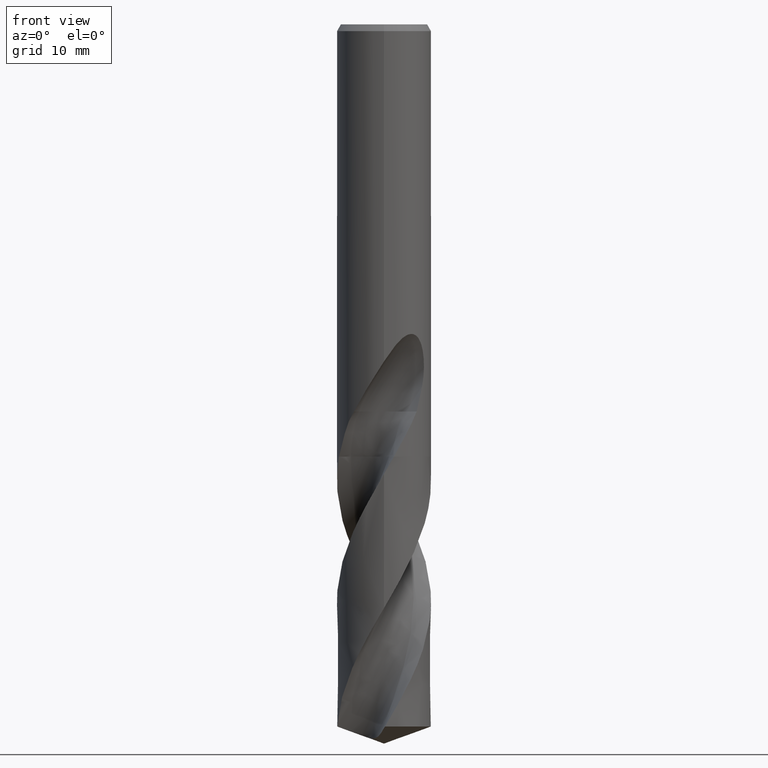
[diagram: clean part render]
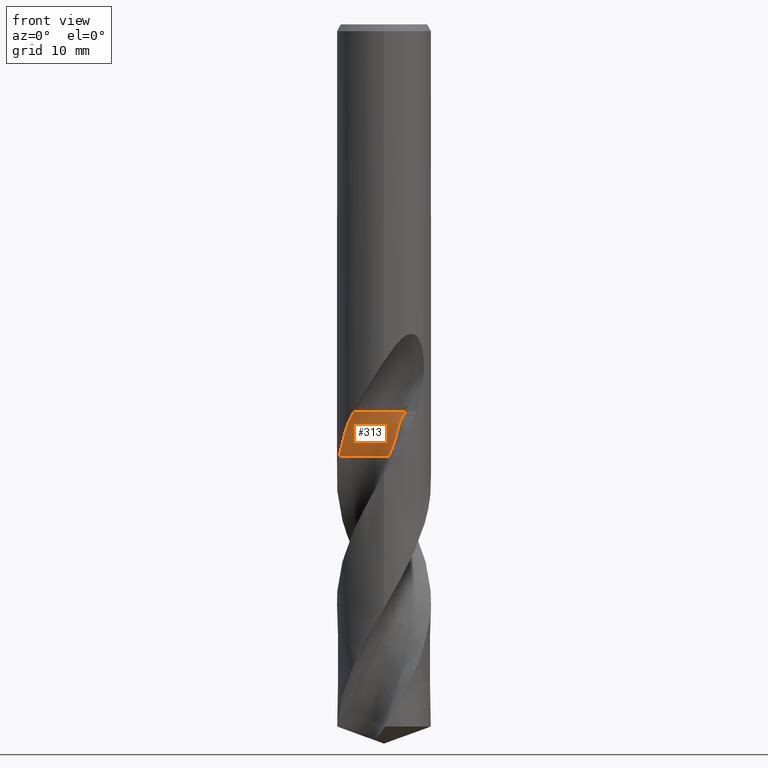
[diagram: same view with one face highlighted and labeled with its STEP entity id]
A machine part, front view. The second image highlights one B-rep face of the part: STEP entity #313.
In plain terms, the highlighted face is a freeform B-spline surface patch.
Its self-contained STEP definition (entity closure, byte-faithful):
#297=EDGE_CURVE('',#369,#449,#815,.T.);
#313=ADVANCED_FACE('',(#831),#832,.F.);
#369=VERTEX_POINT('',#891);
#419=EDGE_CURVE('',#467,#759,#944,.T.);
#425=VERTEX_POINT('',#950);
#435=EDGE_CURVE('',#759,#369,#960,.T.);
#449=VERTEX_POINT('',#975);
#467=VERTEX_POINT('',#996);
#579=EDGE_CURVE('',#449,#425,#1116,.T.);
#679=EDGE_CURVE('',#425,#467,#1232,.T.);
#759=VERTEX_POINT('',#1318);
#815=B_SPLINE_CURVE_WITH_KNOTS('',3,(#1847,#1848,#1849,#1850,#1851,#1852,#1853,#1854,#1855,#1856,#1857,#1858,#1859,#1860),.UNSPECIFIED.,.F.,.F.,(4,2,2,2,2,2,4),(0.0,1.9451827829186,3.38152269793438,4.41054124769396,5.38404337641816,7.0850770684755,8.90217717390362),.UNSPECIFIED.);
#831=FACE_OUTER_BOUND('',#1974,.T.);
#832=B_SPLINE_SURFACE_WITH_KNOTS('',3,3,((#1975,#1976,#1977,#1978,#1979,#1980,#1981,#1982,#1983,#1984,#1985,#1986,#1987,#1988,#1989,#1990,#1991,#1992,#1993,#1994,#1995,#1996,#1997,#1998,#1999,#2000,#2001,#2002,#2003,#2004,#2005,#2006,#2007,#2008,#2009,#2010,#2011,#2012,#2013,#2014,#2015,#2016,#2017),(#2018,#2019,#2020,#2021,#2022,#2023,#2024,#2025,#2026,#2027,#2028,#2029,#2030,#2031,#2032,#2033,#2034,#2035,#2036,#2037,#2038,#2039,#2040,#2041,#2042,#2043,#2044,#2045,#2046,#2047,#2048,#2049,#2050,#2051,#2052,#2053,#2054,#2055,#2056,#2057,#2058,#2059,#2060),(#2061,#2062,#2063,#2064,#2065,#2066,#2067,#2068,#2069,#2070,#2071,#2072,#2073,#2074,#2075,#2076,#2077,#2078,#2079,#2080,#2081,#2082,#2083,#2084,#2085,#2086,#2087,#2088,#2089,#2090,#2091,#2092,#2093,#2094,#2095,#2096,#2097,#2098,#2099,#2100,#2101,#2102,#2103),(#2104,#2105,#2106,#2107,#2108,#2109,#2110,#2111,#2112,#2113,#2114,#2115,#2116,#2117,#2118,#2119,#2120,#2121,#2122,#2123,#2124,#2125,#2126,#2127,#2128,#2129,#2130,#2131,#2132,#2133,#2134,#2135,#2136,#2137,#2138,#2139,#2140,#2141,#2142,#2143,#2144,#2145,#2146),(#2147,#2148,#2149,#2150,#2151,#2152,#2153,#2154,#2155,#2156,#2157,#2158,#2159,#2160,#2161,#2162,#2163,#2164,#2165,#2166,#2167,#2168,#2169,#2170,#2171,#2172,#2173,#2174,#2175,#2176,#2177,#2178,#2179,#2180,#2181,#2182,#2183,#2184,#2185,#2186,#2187,#2188,#2189),(#2190,#2191,#2192,#2193,#2194,#2195,#2196,#2197,#2198,#2199,#2200,#2201,#2202,#2203,#2204,#2205,#2206,#2207,#2208,#2209,#2210,#2211,#2212,#2213,#2214,#2215,#2216,#2217,#2218,#2219,#2220,#2221,#2222,#2223,#2224,#2225,#2226,#2227,#2228,#2229,#2230,#2231,#2232),(#2233,#2234,#2235,#2236,#2237,#2238,#2239,#2240,#2241,#2242,#2243,#2244,#2245,#2246,#2247,#2248,#2249,#2250,#2251,#2252,#2253,#2254,#2255,#2256,#2257,#2258,#2259,#2260,#2261,#2262,#2263,#2264,#2265,#2266,#2267,#2268,#2269,#2270,#2271,#2272,#2273,#2274,#2275),(#2276,#2277,#2278,#2279,#2280,#2281,#2282,#2283,#2284,#2285,#2286,#2287,#2288,#2289,#2290,#2291,#2292,#2293,#2294,#2295,#2296,#2297,#2298,#2299,#2300,#2301,#2302,#2303,#2304,#2305,#2306,#2307,#2308,#2309,#2310,#2311,#2312,#2313,#2314,#2315,#2316,#2317,#2318),(#2319,#2320,#2321,#2322,#2323,#2324,#2325,#2326,#2327,#2328,#2329,#2330,#2331,#2332,#2333,#2334,#2335,#2336,#2337,#2338,#2339,#2340,#2341,#2342,#2343,#2344,#2345,#2346,#2347,#2348,#2349,#2350,#2351,#2352,#2353,#2354,#2355,#2356,#2357,#2358,#2359,#2360,#2361),(#2362,#2363,#2364,#2365,#2366,#2367,#2368,#2369,#2370,#2371,#2372,#2373,#2374,#2375,#2376,#2377,#2378,#2379,#2380,#2381,#2382,#2383,#2384,#2385,#2386,#2387,#2388,#2389,#2390,#2391,#2392,#2393,#2394,#2395,#2396,#2397,#2398,#2399,#2400,#2401,#2402,#2403,#2404),(#2405,#2406,#2407,#2408,#2409,#2410,#2411,#2412,#2413,#2414,#2415,#2416,#2417,#2418,#2419,#2420,#2421,#2422,#2423,#2424,#2425,#2426,#2427,#2428,#2429,#2430,#2431,#2432,#2433,#2434,#2435,#2436,#2437,#2438,#2439,#2440,#2441,#2442,#2443,#2444,#2445,#2446,#2447)),.UNSPECIFIED.,.F.,.F.,.F.,(4,1,1,1,1,1,1,1,4),(4,1,1,2,2,2,2,2,2,2,2,2,2,2,2,2,2,2,2,2,1,2,4),(-4.97486995880838E-017,0.392700718332967,0.785401436665935,1.1781021549989,1.57080287333187,1.96350359166484,2.35620430999781,2.74890502833077,3.14160574666374),(0.0,0.994493988242577,1.98898797648515,2.98348196472773,3.97797595297031,5.96696392945546,7.95595190594061,9.94493988242576,11.9339278589109,15.9119038118812,19.8898797648515,23.8678557178218,27.8458316707921,31.8238076237624,35.8017835767328,39.7797595297031,43.7577354826734,47.7357114356437,51.713687388614,55.6916633415843,59.6696392945546,61.6586272710397,63.6476152475249),.UNSPECIFIED.);
#891=CARTESIAN_POINT('',(-6.69144860367263,-2.05536264060814,-64.3));
#944=B_SPLINE_CURVE_WITH_KNOTS('',3,(#2930,#2931,#2932,#2933,#2934,#2935,#2936,#2937,#2938,#2939,#2940,#2941,#2942,#2943,#2944,#2945,#2946,#2947,#2948,#2949,#2950,#2951,#2952,#2953,#2954,#2955,#2956,#2957,#2958,#2959,#2960,#2961,#2962,#2963,#2964,#2965,#2966,#2967,#2968,#2969,#2970,#2971,#2972),.UNSPECIFIED.,.F.,.F.,(4,1,1,2,2,2,2,2,2,2,2,2,2,2,2,2,2,2,2,2,1,2,4),(0.0,0.994493988242577,1.98898797648515,2.98348196472773,3.97797595297031,5.96696392945546,7.95595190594061,9.94493988242576,11.9339278589109,15.9119038118812,19.8898797648515,23.8678557178218,27.8458316707921,31.8238076237624,35.8017835767328,39.7797595297031,43.7577354826734,47.7357114356437,51.713687388614,55.6916633415843,59.6696392945546,61.6586272710397,63.6476152475249),.UNSPECIFIED.);
#950=CARTESIAN_POINT('',(0.764379768862566,-2.16300864048747,-57.589));
#960=B_SPLINE_CURVE_WITH_KNOTS('',3,(#3048,#3049,#3050,#3051,#3052,#3053,#3054,#3055,#3056,#3057,#3058,#3059,#3060,#3061),.UNSPECIFIED.,.F.,.F.,(4,2,2,2,2,2,4),(0.0,1.82210102478741,3.64315387964052,5.46396887706395,7.28546499508547,8.50182158830522,9.71820884780963),.UNSPECIFIED.);
#975=CARTESIAN_POINT('',(-4.46049730765723,-5.39480896495721,-57.589));
#996=CARTESIAN_POINT('',(3.29983164782354,-3.46683502217647,-57.589));
#1116=CIRCLE('',#5026,4.66666667);
#1232=CIRCLE('',#6349,4.66666667);
#1318=CARTESIAN_POINT('',(0.748145762479187,-4.33704254171391,-64.2999999999999));
#1847=CARTESIAN_POINT('',(-6.69144860367262,-2.05536264060813,-64.3));
#1848=CARTESIAN_POINT('',(-6.59591139504917,-2.36639404139927,-63.7391548991452));
#1849=CARTESIAN_POINT('',(-6.47787799210923,-2.67341129224145,-63.1763521722709));
#1850=CARTESIAN_POINT('',(-6.23291009488896,-3.19543830915819,-62.2031630259271));
#1851=CARTESIAN_POINT('',(-6.11738702830057,-3.41168238523792,-61.7957902130703));
#1852=CARTESIAN_POINT('',(-5.8960799425789,-3.77730901776456,-61.0461534134703));
#1853=CARTESIAN_POINT('',(-5.80238719513786,-3.91923206640351,-60.7376275881678));
#1854=CARTESIAN_POINT('',(-5.61345363457113,-4.1850050892297,-60.1244403960143));
#1855=CARTESIAN_POINT('',(-5.55606207892118,-4.25950079524586,-59.9336442417219));
#1856=CARTESIAN_POINT('',(-5.36013898140775,-4.50656511599813,-59.3449405568858));
#1857=CARTESIAN_POINT('',(-5.21986348424436,-4.67000849152014,-58.9926413427591));
#1858=CARTESIAN_POINT('',(-4.88153314513781,-5.02339373161047,-58.278931966661));
#1859=CARTESIAN_POINT('',(-4.68422765363351,-5.20982584278351,-57.9284153820524));
#1860=CARTESIAN_POINT('',(-4.46049730765723,-5.39480896495721,-57.589));
#1974=EDGE_LOOP('',(#7559,#7560,#7561,#7562,#7563));
#1975=CARTESIAN_POINT('',(-3.29983164782353,-10.0664983178235,-57.589));
#1976=CARTESIAN_POINT('',(-3.50881254603856,-10.0545086616715,-57.8460583386257));
#1977=CARTESIAN_POINT('',(-3.92977032875239,-10.0017339363966,-58.3622545763585));
#1978=CARTESIAN_POINT('',(-4.56326547366707,-9.81944057087525,-59.1399459981914));
#1979=CARTESIAN_POINT('',(-4.97774642156578,-9.61541989535124,-59.6564441800539));
#1980=CARTESIAN_POINT('',(-5.38156272028351,-9.36439585003654,-60.1691905475161));
#1981=CARTESIAN_POINT('',(-5.57876784448333,-9.23409513295122,-60.4252080562311));
#1982=CARTESIAN_POINT('',(-6.15723615038502,-8.830839009457,-61.1931720667427));
#1983=CARTESIAN_POINT('',(-6.52618836616893,-8.55065171422104,-61.7057245244399));
#1984=CARTESIAN_POINT('',(-7.2362501683759,-7.97635871886207,-62.7382587712829));
#1985=CARTESIAN_POINT('',(-7.57269513881336,-7.66489311404026,-63.2543647951044));
#1986=CARTESIAN_POINT('',(-8.19988108467798,-6.99493648458523,-64.2849822665184));
#1987=CARTESIAN_POINT('',(-8.4914752786019,-6.63863491734581,-64.7998037640289));
#1988=CARTESIAN_POINT('',(-9.02400731562542,-5.88690441270039,-65.8277369762846));
#1989=CARTESIAN_POINT('',(-9.26706787332613,-5.49524691568576,-66.3421265537199));
#1990=CARTESIAN_POINT('',(-9.91901959807469,-4.27960512167858,-67.8872163453967));
#1991=CARTESIAN_POINT('',(-10.2519857468365,-3.41617499501985,-68.9170991677876));
#1992=CARTESIAN_POINT('',(-10.6796761487768,-1.62633860006734,-70.9758516861561));
#1993=CARTESIAN_POINT('',(-10.7824361029543,-0.706382727473785,-72.0053162300034));
#1994=CARTESIAN_POINT('',(-10.7433200409735,1.13324726122313,-74.0645744854547));
#1995=CARTESIAN_POINT('',(-10.6096864227348,2.04915243873665,-75.0941672343814));
#1996=CARTESIAN_POINT('',(-10.1054297114813,3.81879192086436,-77.1532358862243));
#1997=CARTESIAN_POINT('',(-9.74401141812056,4.67095408556283,-78.1827868065449));
#1998=CARTESIAN_POINT('',(-8.80771467266974,6.25504442832634,-80.2419197191751));
#1999=CARTESIAN_POINT('',(-8.24214050217149,6.98777328372831,-81.271476342567));
#2000=CARTESIAN_POINT('',(-6.93509058503573,8.28291775174636,-83.330593199328));
#2001=CARTESIAN_POINT('',(-6.20232147883095,8.8484367270787,-84.3601537105726));
#2002=CARTESIAN_POINT('',(-4.60968879041636,9.77006548460051,-86.4192680232754));
#2003=CARTESIAN_POINT('',(-3.75749869244718,10.1314093158815,-87.4488309978122));
#2004=CARTESIAN_POINT('',(-1.98323239051513,10.6192505141428,-89.5079497015168));
#2005=CARTESIAN_POINT('',(-1.06729515296425,10.7528026914806,-90.5375020018725));
#2006=CARTESIAN_POINT('',(0.772635298698635,10.7751840080433,-92.5966246789132));
#2007=CARTESIAN_POINT('',(1.69251400366652,10.6723276029332,-93.6261918776934));
#2008=CARTESIAN_POINT('',(3.4780271543937,10.2277648228481,-95.6852928300867));
#2009=CARTESIAN_POINT('',(4.34178575698249,9.89508223823008,-96.7148110660356));
#2010=CARTESIAN_POINT('',(5.9564814464106,9.01239888982671,-98.7739869054311));
#2011=CARTESIAN_POINT('',(6.70794899003705,8.47166995433783,-99.8037510739771));
#2012=CARTESIAN_POINT('',(8.04561415509657,7.20802352223647,-101.862869114957));
#2013=CARTESIAN_POINT('',(8.9298719244274,6.13892736565896,-103.406162240559));
#2014=CARTESIAN_POINT('',(9.58594201694645,4.92165016213681,-104.949807598427));
#2015=CARTESIAN_POINT('',(9.96519930062713,4.0816668858364,-105.978998266864));
#2016=CARTESIAN_POINT('',(10.1327521242864,3.65577134891559,-106.492924436925));
#2017=CARTESIAN_POINT('',(10.2806169825766,3.22633791090588,-107.007569177992));
#2018=CARTESIAN_POINT('',(-3.73176163040232,-9.63453079590838,-57.5889999999997));
#2019=CARTESIAN_POINT('',(-3.94072856525849,-9.62252718025161,-57.8460579773047));
#2020=CARTESIAN_POINT('',(-4.3579178149229,-9.56593515774658,-58.3624595022561));
#2021=CARTESIAN_POINT('',(-4.97406917282312,-9.36696676986825,-59.1408498304168));
#2022=CARTESIAN_POINT('',(-5.36796910923515,-9.14514976528623,-59.6575990486233));
#2023=CARTESIAN_POINT('',(-5.74596343824771,-8.87384487971447,-60.1700674477359));
#2024=CARTESIAN_POINT('',(-5.93034187723457,-8.73430907120156,-60.4258927569387));
#2025=CARTESIAN_POINT('',(-6.47084927552336,-8.30573753613271,-61.1932699421673));
#2026=CARTESIAN_POINT('',(-6.81600400679812,-8.01235340496926,-61.7055140747684));
#2027=CARTESIAN_POINT('',(-7.48208598457642,-7.41660633888296,-62.7384626668455));
#2028=CARTESIAN_POINT('',(-7.79534935795366,-7.09546313670838,-63.2547527392592));
#2029=CARTESIAN_POINT('',(-8.37371502304079,-6.4087566277588,-64.2855170976543));
#2030=CARTESIAN_POINT('',(-8.64007881771161,-6.04552428212349,-64.8003445038651));
#2031=CARTESIAN_POINT('',(-9.12062630649191,-5.28314288346617,-65.8280518665959));
#2032=CARTESIAN_POINT('',(-9.33771490145596,-4.8879174882778,-66.3423872273284));
#2033=CARTESIAN_POINT('',(-9.91161367790428,-3.66655824802964,-67.8875814031097));
#2034=CARTESIAN_POINT('',(-10.1926852358708,-2.80592801597651,-68.9175092516615));
#2035=CARTESIAN_POINT('',(-10.5170812841235,-1.0351698934971,-70.9762110194065));
#2036=CARTESIAN_POINT('',(-10.5703058773423,-0.131134855252556,-72.0056624120337));
#2037=CARTESIAN_POINT('',(-10.4362540215495,1.66392549488797,-74.0649402154165));
#2038=CARTESIAN_POINT('',(-10.2587325552697,2.55188823726081,-75.0945376761905));
#2039=CARTESIAN_POINT('',(-9.67389507683619,4.25432527599765,-77.1535994215087));
#2040=CARTESIAN_POINT('',(-9.27710306471494,5.06833111690571,-78.1831492562972));
#2041=CARTESIAN_POINT('',(-8.27988781130467,6.56699040050917,-80.2422842655511));
#2042=CARTESIAN_POINT('',(-7.68976717677777,7.25384546567816,-81.2718405532145));
#2043=CARTESIAN_POINT('',(-6.34544511985223,8.45093121906872,-83.3309572866447));
#2044=CARTESIAN_POINT('',(-5.60055432980223,8.96585716033178,-84.360518009602));
#2045=CARTESIAN_POINT('',(-3.99671315341913,9.78317180345821,-86.4196318289816));
#2046=CARTESIAN_POINT('',(-3.14561806104685,10.0924958677325,-87.4491953596021));
#2047=CARTESIAN_POINT('',(-1.38694854189194,10.4765714036595,-89.5083141866375));
#2048=CARTESIAN_POINT('',(-0.485256203615289,10.5600811021299,-90.5378657667178));
#2049=CARTESIAN_POINT('',(1.31329859967938,10.4860581867278,-92.5969884437585));
#2050=CARTESIAN_POINT('',(2.20672182345721,10.3384098009037,-93.6265558485988));
#2051=CARTESIAN_POINT('',(3.92778325467535,9.81107565199473,-95.6856585276232));
#2052=CARTESIAN_POINT('',(4.75458759342346,9.44175409449398,-96.7151761608552));
#2053=CARTESIAN_POINT('',(6.28594434569274,8.49532487957437,-98.7743436137564));
#2054=CARTESIAN_POINT('',(6.99239122189856,7.92852131910726,-99.8041151489435));
#2055=CARTESIAN_POINT('',(8.23317298400808,6.62429495353359,-101.863256869436));
#2056=CARTESIAN_POINT('',(9.04237432652422,5.53456887944045,-103.406472596016));
#2057=CARTESIAN_POINT('',(9.61975099493048,4.31113497689707,-104.950169885672));
#2058=CARTESIAN_POINT('',(9.94562984568271,3.47052972796322,-105.979402733242));
#2059=CARTESIAN_POINT('',(10.0880404866487,3.04607829889202,-106.493254359842));
#2060=CARTESIAN_POINT('',(10.2122746860297,2.61930524880828,-107.007926233685));
#2061=CARTESIAN_POINT('',(-4.42366208765801,-8.59901504931681,-57.5889999999999));
#2062=CARTESIAN_POINT('',(-4.6325955587033,-8.58698906973285,-57.8460573850225));
#2063=CARTESIAN_POINT('',(-5.04073130130756,-8.52426270110077,-58.3627965363668));
#2064=CARTESIAN_POINT('',(-5.61557163235095,-8.29884790357273,-59.1423363446427));
#2065=CARTESIAN_POINT('',(-5.96124140866461,-8.04962974681607,-59.6594984252455));
#2066=CARTESIAN_POINT('',(-6.27953756124377,-7.74804043050628,-60.1715096739226));
#2067=CARTESIAN_POINT('',(-6.43459545681063,-7.59513917884701,-60.4270188688274));
#2068=CARTESIAN_POINT('',(-6.88912987868514,-7.13104346703358,-61.1934309144351));
#2069=CARTESIAN_POINT('',(-7.18145179013713,-6.82073454454745,-61.7051679294575));
#2070=CARTESIAN_POINT('',(-7.75106117045246,-6.19957746400756,-62.7387980327654));
#2071=CARTESIAN_POINT('',(-8.01412272663561,-5.86830156591244,-63.2553907894031));
#2072=CARTESIAN_POINT('',(-8.48820754221347,-5.16751629419489,-64.2863967145464));
#2073=CARTESIAN_POINT('',(-8.70136509231956,-4.80045852725841,-64.8012338822963));
#2074=CARTESIAN_POINT('',(-9.07372983434759,-4.03745225320995,-65.8285697231505));
#2075=CARTESIAN_POINT('',(-9.2374667106876,-3.6454206791817,-66.3428159403744));
#2076=CARTESIAN_POINT('',(-9.65301866413332,-2.44366771173087,-67.8881818265531));
#2077=CARTESIAN_POINT('',(-9.83143639697225,-1.60927267381922,-68.9181837201284));
#2078=CARTESIAN_POINT('',(-9.95687400574221,0.0822606398776643,-70.9768019933762));
#2079=CARTESIAN_POINT('',(-9.91737984534849,0.934762302885794,-72.0062318521999));
#2080=CARTESIAN_POINT('',(-9.61122008417652,2.60294962567693,-74.0655416403347));
#2081=CARTESIAN_POINT('',(-9.35705321553422,3.41758673459161,-75.0951468213974));
#2082=CARTESIAN_POINT('',(-8.63781179298103,4.95360312805145,-77.1541974313213));
#2083=CARTESIAN_POINT('',(-8.18546073662565,5.67724552123525,-78.1837453946385));
#2084=CARTESIAN_POINT('',(-7.10040692189147,6.98085374234333,-80.2428838008008));
#2085=CARTESIAN_POINT('',(-6.47944597884771,7.56621926839333,-81.2724395724957));
#2086=CARTESIAN_POINT('',(-5.09958973079383,8.5524070938313,-83.3315560820657));
#2087=CARTESIAN_POINT('',(-4.35057954898381,8.96134793176416,-84.3611172392383));
#2088=CARTESIAN_POINT('',(-2.76580817880315,9.56562108097839,-86.4202300962356));
#2089=CARTESIAN_POINT('',(-1.93758889211631,9.77136294864735,-87.4497944636949));
#2090=CARTESIAN_POINT('',(-0.251370158395844,9.95415312687895,-89.5089138000691));
#2091=CARTESIAN_POINT('',(0.601938338745788,9.9432636007653,-90.5384641468212));
#2092=CARTESIAN_POINT('',(2.27942283333668,9.69292640210051,-92.5975866147934));
#2093=CARTESIAN_POINT('',(3.10213412029302,9.46623318965089,-93.6271544888506));
#2094=CARTESIAN_POINT('',(4.66140412995311,8.79902141201086,-95.6862599560456));
#2095=CARTESIAN_POINT('',(5.39974557434216,8.37113266624042,-96.7157764071704));
#2096=CARTESIAN_POINT('',(6.73911006576655,7.33037925329702,-98.7749305002556));
#2097=CARTESIAN_POINT('',(7.34516573042872,6.72934061261509,-99.8047136269693));
#2098=CARTESIAN_POINT('',(8.37608426513044,5.38249829722481,-101.863894907776));
#2099=CARTESIAN_POINT('',(9.02700059886034,4.28136836410778,-103.406983059183));
#2100=CARTESIAN_POINT('',(9.44457534059838,3.07691709386545,-104.950765625445));
#2101=CARTESIAN_POINT('',(9.66347237859548,2.25629478471166,-105.980068055276));
#2102=CARTESIAN_POINT('',(9.75618359423897,1.844729111991,-106.493797006551));
#2103=CARTESIAN_POINT('',(9.83422432518714,1.43267275135709,-107.008513474876));
#2104=CARTESIAN_POINT('',(-4.78815013996792,-6.76667242885585,-57.5890000000006));
#2105=CARTESIAN_POINT('',(-4.99702438896652,-6.75463467062173,-57.8460570130688));
#2106=CARTESIAN_POINT('',(-5.3890910636519,-6.68860375807203,-58.3630069344086));
#2107=CARTESIAN_POINT('',(-5.89149644470023,-6.45024982084936,-59.143264311467));
#2108=CARTESIAN_POINT('',(-6.15459342528215,-6.19074126242421,-59.6606841306378));
#2109=CARTESIAN_POINT('',(-6.37276629066178,-5.88145026099746,-60.1724099885699));
#2110=CARTESIAN_POINT('',(-6.47951505658498,-5.72685730974124,-60.4277218528075));
#2111=CARTESIAN_POINT('',(-6.79450327314536,-5.26288116531852,-61.1935314017895));
#2112=CARTESIAN_POINT('',(-7.00388690275235,-4.95944418279917,-61.7049518583315));
#2113=CARTESIAN_POINT('',(-7.42520501377317,-4.35845086807929,-62.7390073747786));
#2114=CARTESIAN_POINT('',(-7.61287359725732,-4.04194992933147,-63.2557890993745));
#2115=CARTESIAN_POINT('',(-7.93435028356544,-3.38151482426968,-64.2869458193425));
#2116=CARTESIAN_POINT('',(-8.07157144060875,-3.03969840744269,-64.8017890682727));
#2117=CARTESIAN_POINT('',(-8.29364334905912,-2.33792895923852,-65.8288930139229));
#2118=CARTESIAN_POINT('',(-8.38527162247996,-1.98095049832299,-66.3430835776314));
#2119=CARTESIAN_POINT('',(-8.59262061957592,-0.897269681474612,-67.8885566253019));
#2120=CARTESIAN_POINT('',(-8.64382720063193,-0.158163417991406,-68.9186047844446));
#2121=CARTESIAN_POINT('',(-8.53900083133701,1.30935695267795,-70.9771708907724));
#2122=CARTESIAN_POINT('',(-8.40058747458571,2.0372113869389,-72.0065872732054));
#2123=CARTESIAN_POINT('',(-7.92872928216756,3.43076236901789,-74.065917140432));
#2124=CARTESIAN_POINT('',(-7.61042956804136,4.09977650669047,-75.0955271066683));
#2125=CARTESIAN_POINT('',(-6.80044758646038,5.32799017311723,-77.1545707214222));
#2126=CARTESIAN_POINT('',(-6.32296857223982,5.89450110353119,-78.184117537307));
#2127=CARTESIAN_POINT('',(-5.22814576914339,6.87735746364036,-80.2432580661399));
#2128=CARTESIAN_POINT('',(-4.62270251241508,7.30436136771674,-81.2728135156968));
#2129=CARTESIAN_POINT('',(-3.31466454135437,7.9778602373278,-83.3319298834696));
#2130=CARTESIAN_POINT('',(-2.62078621813453,8.23754799378424,-84.3614912350259));
#2131=CARTESIAN_POINT('',(-1.18474105071755,8.55750689327334,-86.4206036466578));
#2132=CARTESIAN_POINT('',(-0.447687740518252,8.63282259877385,-87.4501684867153));
#2133=CARTESIAN_POINT('',(1.02257075806945,8.57823517744179,-89.5092880852494));
#2134=CARTESIAN_POINT('',(1.75463240731503,8.46428943291188,-90.5388375994318));
#2135=CARTESIAN_POINT('',(3.16310797336417,8.03909300532693,-92.597960117999));
#2136=CARTESIAN_POINT('',(3.84244140380669,7.74344130663392,-93.6275281330164));
#2137=CARTESIAN_POINT('',(5.09718217365306,6.97524497931631,-95.686635463549));
#2138=CARTESIAN_POINT('',(5.67929931959901,6.51696831553941,-96.7161512745028));
#2139=CARTESIAN_POINT('',(6.69842837424658,5.45570146884466,-98.7752967092924));
#2140=CARTESIAN_POINT('',(7.14569572618579,4.86484496732055,-99.805087271697));
#2141=CARTESIAN_POINT('',(7.86129408055663,3.57941219660213,-101.864293167457));
#2142=CARTESIAN_POINT('',(8.28629147503005,2.55334113442922,-103.40730167831));
#2143=CARTESIAN_POINT('',(8.49328834828579,1.46693309593337,-104.951137571696));
#2144=CARTESIAN_POINT('',(8.57538701884239,0.735418858272012,-105.980483336108));
#2145=CARTESIAN_POINT('',(8.6066151674876,0.370242154226122,-106.494135782925));
#2146=CARTESIAN_POINT('',(8.62908299142292,0.00509954822618292,-107.008880064482));
#2147=CARTESIAN_POINT('',(-4.42368302919141,-4.93432564284499,-57.5889999999997));
#2148=CARTESIAN_POINT('',(-4.6324980618295,-4.92229966863291,-57.8460572183982));
#2149=CARTESIAN_POINT('',(-5.00845415616093,-4.8593651754575,-58.362890096104));
#2150=CARTESIAN_POINT('',(-5.43898806050361,-4.63677638133093,-59.1427489854165));
#2151=CARTESIAN_POINT('',(-5.62186070905156,-4.39935960177217,-59.6600256761284));
#2152=CARTESIAN_POINT('',(-5.74458355097845,-4.12126916162013,-60.1719100178147));
#2153=CARTESIAN_POINT('',(-5.80605263611867,-3.98360069981228,-60.427331468878));
#2154=CARTESIAN_POINT('',(-5.99216193717878,-3.5731376901962,-61.1934755928848));
#2155=CARTESIAN_POINT('',(-6.12755064437716,-3.30778869109435,-61.7050718581898));
#2156=CARTESIAN_POINT('',(-6.41958196097073,-2.78217308488059,-62.7388911117857));
#2157=CARTESIAN_POINT('',(-6.54325090496235,-2.50817401971095,-63.2555679151746));
#2158=CARTESIAN_POINT('',(-6.7391777116804,-1.94341822472888,-64.286640877627));
#2159=CARTESIAN_POINT('',(-6.81590231287081,-1.65398146141315,-64.8014807625984));
#2160=CARTESIAN_POINT('',(-6.92255598701263,-1.06630246085856,-65.828713476891));
#2161=CARTESIAN_POINT('',(-6.96097896255789,-0.769303749496043,-66.3429349599084));
#2162=CARTESIAN_POINT('',(-7.02115805546506,0.12561667971264,-67.8883484716168));
#2163=CARTESIAN_POINT('',(-6.99130255903262,0.728005918135652,-68.9183709555119));
#2164=CARTESIAN_POINT('',(-6.75946646801981,1.90044685936529,-70.9769660318732));
#2165=CARTESIAN_POINT('',(-6.57736437780929,2.47528748192744,-72.0063898774554));
#2166=CARTESIAN_POINT('',(-6.05752001647718,3.55169739247732,-74.0657086352505));
#2167=CARTESIAN_POINT('',(-5.73569706178056,4.06163092280547,-75.0953159750353));
#2168=CARTESIAN_POINT('',(-4.95967317278114,4.970747050885,-77.1543633715807));
#2169=CARTESIAN_POINT('',(-4.51911079747335,5.38247143795377,-78.1839108485987));
#2170=CARTESIAN_POINT('',(-3.53800955323688,6.06525348887199,-80.2430502536066));
#2171=CARTESIAN_POINT('',(-3.00750531143267,6.35188880751094,-81.2726058853544));
#2172=CARTESIAN_POINT('',(-1.88548009074072,6.76398465765321,-83.3317222703217));
#2173=CARTESIAN_POINT('',(-1.29965375496171,6.90687882479332,-84.3612835104334));
#2174=CARTESIAN_POINT('',(-0.109816454487441,7.02108093445657,-86.420396237929));
#2175=CARTESIAN_POINT('',(0.49309847085435,7.01078652500466,-87.4499607196417));
#2176=CARTESIAN_POINT('',(1.67299503192368,6.8195356662845,-89.5090802958465));
#2177=CARTESIAN_POINT('',(2.25360123969187,6.65677775679425,-90.5386302998312));
#2178=CARTESIAN_POINT('',(3.34662910243399,6.17297822293768,-92.5977526121561));
#2179=CARTESIAN_POINT('',(3.86710940459124,5.86848572895271,-93.6273206379317));
#2180=CARTESIAN_POINT('',(4.80185675002777,5.12353066786588,-95.6864269337688));
#2181=CARTESIAN_POINT('',(5.22801257232492,4.69696387077909,-96.715943093168));
#2182=CARTESIAN_POINT('',(5.94343263318058,3.73929438988125,-98.7750933501922));
#2183=CARTESIAN_POINT('',(6.24789537840215,3.21861080539169,-99.8048797765485));
#2184=CARTESIAN_POINT('',(6.69567656220635,2.11058125453469,-101.864072002495));
#2185=CARTESIAN_POINT('',(6.94067601373363,1.24031132233056,-103.407124757239));
#2186=CARTESIAN_POINT('',(6.99829786470512,0.343545861444379,-104.950931002557));
#2187=CARTESIAN_POINT('',(6.98811168513648,-0.253292701476319,-105.980252736023));
#2188=CARTESIAN_POINT('',(6.98028925119593,-0.552082885936365,-106.493947651013));
#2189=CARTESIAN_POINT('',(6.96936764026017,-0.852615981953073,-107.008676487019));
#2190=CARTESIAN_POINT('',(-3.38574802558682,-3.38093517444262,-57.5889999999994));
#2191=CARTESIAN_POINT('',(-3.59451285397219,-3.36894273932881,-57.8460579705312));
#2192=CARTESIAN_POINT('',(-3.9567695835608,-3.31503424841942,-58.362463807161));
#2193=CARTESIAN_POINT('',(-4.3269373391836,-3.13451475299781,-59.1408688215108));
#2194=CARTESIAN_POINT('',(-4.44414766467083,-2.94820862626746,-59.6576233085946));
#2195=CARTESIAN_POINT('',(-4.49062524613384,-2.73547095497589,-60.1700858759795));
#2196=CARTESIAN_POINT('',(-4.51673758670741,-2.63076654789907,-60.4259071432813));
#2197=CARTESIAN_POINT('',(-4.60425607271243,-2.31906328684797,-61.1932719975124));
#2198=CARTESIAN_POINT('',(-4.6858583738981,-2.11721971905361,-61.7055096538508));
#2199=CARTESIAN_POINT('',(-4.88729025568413,-1.71072008801375,-62.7384669500609));
#2200=CARTESIAN_POINT('',(-4.96809636516981,-1.50047922836665,-63.2547608928991));
#2201=CARTESIAN_POINT('',(-5.08464549664399,-1.07216547634236,-64.2855283318669));
#2202=CARTESIAN_POINT('',(-5.12552351467653,-0.854272259827268,-64.8003558774804));
#2203=CARTESIAN_POINT('',(-5.169205096955,-0.416167966610995,-65.8280584700904));
#2204=CARTESIAN_POINT('',(-5.18142613876325,-0.194944168598768,-66.3423927050715));
#2205=CARTESIAN_POINT('',(-5.17787391530108,0.469264883037513,-67.88758907132));
#2206=CARTESIAN_POINT('',(-5.12544646414162,0.914322989045573,-68.9175178759589));
#2207=CARTESIAN_POINT('',(-4.88919109472844,1.76554152667335,-70.9762185608503));
#2208=CARTESIAN_POINT('',(-4.72528196827225,2.18229687915033,-72.0056697055498));
#2209=CARTESIAN_POINT('',(-4.28246933867436,2.94734332918187,-74.0649478794403));
#2210=CARTESIAN_POINT('',(-4.01826907058516,3.30895735507822,-75.0945454697058));
#2211=CARTESIAN_POINT('',(-3.39573207967211,3.93626123079098,-77.1536070491245));
#2212=CARTESIAN_POINT('',(-3.04851069192599,4.2191089979266,-78.1831568787589));
#2213=CARTESIAN_POINT('',(-2.28730828320021,4.66817834670197,-80.2422919175446));
#2214=CARTESIAN_POINT('',(-1.87975554949646,4.85380805695897,-81.2718482347881));
#2215=CARTESIAN_POINT('',(-1.0296185279109,5.09558346555501,-83.330964906883));
#2216=CARTESIAN_POINT('',(-0.588314304904562,5.17192433297148,-84.3605256591793));
#2217=CARTESIAN_POINT('',(0.295316786965503,5.19025213067615,-86.419639477147));
#2218=CARTESIAN_POINT('',(0.741542365444168,5.15219709109883,-87.4492029071428));
#2219=CARTESIAN_POINT('',(1.60088067451114,4.94580281082289,-89.5083219524326));
#2220=CARTESIAN_POINT('',(2.02288068509204,4.79590814011155,-90.5378733949943));
#2221=CARTESIAN_POINT('',(2.80204660657433,4.37868341573459,-92.5969961011483));
#2222=CARTESIAN_POINT('',(3.17238257926955,4.1268138228337,-93.6265634706095));
#2223=CARTESIAN_POINT('',(3.82038888059946,3.52578748785003,-95.6856662362154));
#2224=CARTESIAN_POINT('',(4.11459019871092,3.18820085062577,-96.7151837514796));
#2225=CARTESIAN_POINT('',(4.58906506128011,2.44246752439062,-98.7743511884793));
#2226=CARTESIAN_POINT('',(4.78844776345011,2.04126438317229,-99.8041226832084));
#2227=CARTESIAN_POINT('',(5.05668788359601,1.19962354064977,-101.863265131376));
#2228=CARTESIAN_POINT('',(5.19501370576997,0.542177481366297,-103.406479097299));
#2229=CARTESIAN_POINT('',(5.18720445908953,-0.122217710505903,-104.950177488109));
#2230=CARTESIAN_POINT('',(5.14329669905227,-0.559316252758394,-105.979411240577));
#2231=CARTESIAN_POINT('',(5.12480128391001,-0.781829222348777,-106.493261289484));
#2232=CARTESIAN_POINT('',(5.10775696756623,-1.00989335052439,-107.007933735558));
#2233=CARTESIAN_POINT('',(-1.8323626246912,-2.34299258676031,-57.5890000000006));
#2234=CARTESIAN_POINT('',(-2.04109390735238,-2.33105035736511,-57.8460591512369));
#2235=CARTESIAN_POINT('',(-2.39414809463353,-2.29072328899781,-58.3617929695143));
#2236=CARTESIAN_POINT('',(-2.72464531538338,-2.17217253619136,-59.1379100590672));
#2237=CARTESIAN_POINT('',(-2.80075190196657,-2.05821473190429,-59.6538427737697));
#2238=CARTESIAN_POINT('',(-2.80179673203654,-1.93503259468118,-60.1672152703646));
#2239=CARTESIAN_POINT('',(-2.80785805578007,-1.87431327514098,-60.4236657241759));
#2240=CARTESIAN_POINT('',(-2.84208349714279,-1.69158100508745,-61.1929516000514));
#2241=CARTESIAN_POINT('',(-2.89829649178088,-1.56899207500928,-61.7061985862484));
#2242=CARTESIAN_POINT('',(-3.06160932381085,-1.30721224210016,-62.7377994730055));
#2243=CARTESIAN_POINT('',(-3.12721492331568,-1.1722792199574,-63.2534909145027));
#2244=CARTESIAN_POINT('',(-3.22264326984128,-0.900397998296929,-64.2837775393467));
#2245=CARTESIAN_POINT('',(-3.25778199582118,-0.762320278063795,-64.7985856830488));
#2246=CARTESIAN_POINT('',(-3.30052467033913,-0.48650337705607,-65.8270276980307));
#2247=CARTESIAN_POINT('',(-3.31753616043358,-0.345313504790769,-66.341539375898));
#2248=CARTESIAN_POINT('',(-3.34339381998127,0.0813571544354097,-67.8863940197405));
#2249=CARTESIAN_POINT('',(-3.33032089681503,0.372422465858101,-68.9161754115728));
#2250=CARTESIAN_POINT('',(-3.21290955849725,0.925179247975793,-70.9750422832423));
#2251=CARTESIAN_POINT('',(-3.12630535458615,1.2028450915513,-72.0045363864636));
#2252=CARTESIAN_POINT('',(-2.87381481610154,1.70970838117851,-74.0637507036944));
#2253=CARTESIAN_POINT('',(-2.71961054355307,1.95634446591947,-75.0933328272423));
#2254=CARTESIAN_POINT('',(-2.3467221657622,2.38202510521309,-77.1524169650835));
#2255=CARTESIAN_POINT('',(-2.13505570316341,2.58152671487743,-78.1819703376133));
#2256=CARTESIAN_POINT('',(-1.66645138602478,2.89882572443873,-80.2410985848799));
#2257=CARTESIAN_POINT('',(-1.41114431313217,3.03819024418393,-81.2706559103543));
#2258=CARTESIAN_POINT('',(-0.877378093783461,3.22665767086626,-83.3297730958398));
#2259=CARTESIAN_POINT('',(-0.59506375441177,3.29681778712186,-84.3593330627866));
#2260=CARTESIAN_POINT('',(-0.031019684873271,3.34374986257127,-86.4184485706373));
#2261=CARTESIAN_POINT('',(0.259820327063849,3.34000996552051,-87.4480104204545));
#2262=CARTESIAN_POINT('',(0.817206507533977,3.24229785276237,-89.507128506658));
#2263=CARTESIAN_POINT('',(1.09759617958844,3.16498338221046,-90.5366824077657));
#2264=CARTESIAN_POINT('',(1.61226888217035,2.92937601230985,-92.5958054678947));
#2265=CARTESIAN_POINT('',(1.86402768420203,2.78358154035897,-93.6253719462721));
#2266=CARTESIAN_POINT('',(2.30219935618243,2.42525934521763,-95.6844691387312));
#2267=CARTESIAN_POINT('',(2.50854206951998,2.22037661436792,-96.7139887952661));
#2268=CARTESIAN_POINT('',(2.84151752762548,1.76265265479806,-98.7731832704893));
#2269=CARTESIAN_POINT('',(2.98954236549359,1.51204756046874,-99.8029311991884));
#2270=CARTESIAN_POINT('',(3.19385128003673,0.985225185204773,-101.86199544796));
#2271=CARTESIAN_POINT('',(3.31506795695382,0.565225015361875,-103.405463115823));
#2272=CARTESIAN_POINT('',(3.33573299286701,0.140551280782511,-104.948991610889));
#2273=CARTESIAN_POINT('',(3.32180069039409,-0.136062136255507,-105.978087095005));
#2274=CARTESIAN_POINT('',(3.322634795143,-0.284019775534139,-106.492181231281));
#2275=CARTESIAN_POINT('',(3.32766665461789,-0.442788306830766,-107.006764888208));
#2276=CARTESIAN_POINT('',(-1.76181341720039E-005,-1.97851652995708,-57.5890000000001));
#2277=CARTESIAN_POINT('',(-0.208737122420851,-1.96663352268585,-57.8460605850111));
#2278=CARTESIAN_POINT('',(-0.558486605619032,-1.94237563860894,-58.3609797117121));
#2279=CARTESIAN_POINT('',(-0.876048437220854,-1.89625880772419,-59.1343231477424));
#2280=CARTESIAN_POINT('',(-0.941867578806657,-1.86487253790325,-59.649259623814));
#2281=CARTESIAN_POINT('',(-0.935208964318025,-1.84181456596512,-60.1637352329765));
#2282=CARTESIAN_POINT('',(-0.939577600871107,-1.82940499300285,-60.4209484489546));
#2283=CARTESIAN_POINT('',(-0.973921219545593,-1.78622009937967,-61.1925631808203));
#2284=CARTESIAN_POINT('',(-1.03700729322242,-1.74656914290726,-61.7070337887088));
#2285=CARTESIAN_POINT('',(-1.22048486051045,-1.63308045620352,-62.736990280889));
#2286=CARTESIAN_POINT('',(-1.3008664191358,-1.57353987795483,-63.2519513285322));
#2287=CARTESIAN_POINT('',(-1.4366463017139,-1.45426605098647,-64.2816550402904));
#2288=CARTESIAN_POINT('',(-1.49702682520985,-1.3921244935726,-64.7964396811811));
#2289=CARTESIAN_POINT('',(-1.60100668906273,-1.26660066884655,-65.8257780840981));
#2290=CARTESIAN_POINT('',(-1.65307173826409,-1.19751922818514,-66.3405048856577));
#2291=CARTESIAN_POINT('',(-1.79700298646449,-0.979050531291796,-67.8849452530035));
#2292=CARTESIAN_POINT('',(-1.87921968210702,-0.815195503857836,-68.9145479581657));
#2293=CARTESIAN_POINT('',(-1.98582264579073,-0.492701411482416,-70.9736162620193));
#2294=CARTESIAN_POINT('',(-2.02386627164759,-0.313953928433768,-72.0031624688895));
#2295=CARTESIAN_POINT('',(-2.04601305756353,0.027212730785926,-74.0622993589532));
#2296=CARTESIAN_POINT('',(-2.03743215246594,0.209716990202058,-75.09186282593));
#2297=CARTESIAN_POINT('',(-1.97234693849396,0.544658992331015,-77.1509741375267));
#2298=CARTESIAN_POINT('',(-1.91781212775816,0.719033667008234,-78.1805319314942));
#2299=CARTESIAN_POINT('',(-1.76995956311519,1.02656576690497,-80.2396518664787));
#2300=CARTESIAN_POINT('',(-1.67301398324465,1.18144895248753,-81.2692105217787));
#2301=CARTESIAN_POINT('',(-1.45193622393926,1.44173666941793,-83.328328193473));
#2302=CARTESIAN_POINT('',(-1.31887450973269,1.56702954174424,-84.3578872631968));
#2303=CARTESIAN_POINT('',(-1.03914373441382,1.7626896429049,-86.4170048461384));
#2304=CARTESIAN_POINT('',(-0.878729220445797,1.85011651037069,-87.4465646612704));
#2305=CARTESIAN_POINT('',(-0.55871920635154,1.96836608376964,-89.5056817963966));
#2306=CARTESIAN_POINT('',(-0.381384937282142,2.01229907458392,-90.5352388314268));
#2307=CARTESIAN_POINT('',(-0.0415697095046198,2.04570170374664,-92.5943618022371));
#2308=CARTESIAN_POINT('',(0.141231532221051,2.04328548495839,-93.6239275607168));
#2309=CARTESIAN_POINT('',(0.478420669738188,1.98949306963768,-95.683017794562));
#2310=CARTESIAN_POINT('',(0.654376452342715,1.94083477974854,-96.7125401277148));
#2311=CARTESIAN_POINT('',(0.966840504690825,1.8033463452137,-98.7717674221521));
#2312=CARTESIAN_POINT('',(1.12504850526733,1.7115294428088,-99.8014867967341));
#2313=CARTESIAN_POINT('',(1.3907690435657,1.50002668412592,-101.860456173494));
#2314=CARTESIAN_POINT('',(1.58704582410704,1.30594510037068,-103.404231499619));
#2315=CARTESIAN_POINT('',(1.72575553582359,1.09184832086833,-104.94755391941));
#2316=CARTESIAN_POINT('',(1.80093219276243,0.952032503787692,-105.976481882135));
#2317=CARTESIAN_POINT('',(1.84815555587981,0.865557843958886,-106.490871866565));
#2318=CARTESIAN_POINT('',(1.90010154479575,0.762361836671141,-107.005347892844));
#2319=CARTESIAN_POINT('',(1.83234837941739,-2.34297403895316,-57.589));
#2320=CARTESIAN_POINT('',(1.62361709755357,-2.33115025181115,-57.8460620502829));
#2321=CARTESIAN_POINT('',(1.27077154977349,-2.32300309604733,-58.3601478376624));
#2322=CARTESIAN_POINT('',(0.937441490686544,-2.34875874050842,-59.1306541247047));
#2323=CARTESIAN_POINT('',(0.849528196401657,-2.39759737350627,-59.64457156012));
#2324=CARTESIAN_POINT('',(0.824989184036123,-2.46999036170026,-60.1601755290452));
#2325=CARTESIAN_POINT('',(0.803697659545025,-2.50286104856449,-60.4181689724428));
#2326=CARTESIAN_POINT('',(0.715843909837423,-2.58855684211344,-61.1921658663399));
#2327=CARTESIAN_POINT('',(0.614669367840685,-2.6229017221024,-61.7078881207815));
#2328=CARTESIAN_POINT('',(0.35581433439339,-2.63870153530617,-62.7361625545832));
#2329=CARTESIAN_POINT('',(0.232930339604357,-2.64316126056289,-63.2503764931111));
#2330=CARTESIAN_POINT('',(0.00147061817072014,-2.64943886527361,-64.2794839592339));
#2331=CARTESIAN_POINT('',(-0.111289565370382,-2.64779468827578,-64.7942445478237));
#2332=CARTESIAN_POINT('',(-0.329359301804215,-2.6376913069195,-65.8244998701464));
#2333=CARTESIAN_POINT('',(-0.441404191606096,-2.62181613746572,-66.3394467126235));
#2334=CARTESIAN_POINT('',(-0.774096724040446,-2.55051976590519,-67.8834633245556));
#2335=CARTESIAN_POINT('',(-0.993031187549205,-2.46772836324761,-68.91288323029));
#2336=CARTESIAN_POINT('',(-1.39471513721634,-2.27224728997894,-70.972157615956));
#2337=CARTESIAN_POINT('',(-1.58577362406992,-2.13719006224283,-72.0017570807848));
#2338=CARTESIAN_POINT('',(-1.92506394947307,-1.84401207890885,-74.0608148096105));
#2339=CARTESIAN_POINT('',(-2.07556501384844,-1.66503219569801,-75.0903592515464));
#2340=CARTESIAN_POINT('',(-2.32958040060154,-1.29613408261884,-77.1494982033684));
#2341=CARTESIAN_POINT('',(-2.42983369389365,-1.08484348847546,-78.1790606017973));
#2342=CARTESIAN_POINT('',(-2.58205894412591,-0.663590950843904,-80.2381720261721));
#2343=CARTESIAN_POINT('',(-2.62548368702461,-0.433769045474567,-81.267732014299));
#2344=CARTESIAN_POINT('',(-2.66581248669731,0.012531222451122,-83.3268502462571));
#2345=CARTESIAN_POINT('',(-2.64954617598185,0.245876263581087,-84.356408365517));
#2346=CARTESIAN_POINT('',(-2.5755756844682,0.687744881176694,-86.4155280735317));
#2347=CARTESIAN_POINT('',(-2.50077296909103,0.909310755152125,-87.4450857761969));
#2348=CARTESIAN_POINT('',(-2.31742963804261,1.31792386405674,-89.5042019984038));
#2349=CARTESIAN_POINT('',(-2.1889089963256,1.51331331710306,-90.5337620200939));
#2350=CARTESIAN_POINT('',(-1.90769960212797,1.86216594464158,-92.5928852776077));
#2351=CARTESIAN_POINT('',(-1.73374032683119,2.01860423414789,-93.6224501132329));
#2352=CARTESIAN_POINT('',(-1.37331194522456,2.28480818602908,-95.681533224055));
#2353=CARTESIAN_POINT('',(-1.16564707535634,2.39211281934217,-96.7110584026213));
#2354=CARTESIAN_POINT('',(-0.749586942949246,2.55833677199961,-98.7703190576455));
#2355=CARTESIAN_POINT('',(-0.521206339126032,2.6093262352527,-99.8000093810124));
#2356=CARTESIAN_POINT('',(-0.0780828387371703,2.66564416567053,-101.858881610788));
#2357=CARTESIAN_POINT('',(0.27399498905705,2.65156331131761,-103.402971577359));
#2358=CARTESIAN_POINT('',(0.602348025242069,2.5868441249922,-104.94608344181));
#2359=CARTESIAN_POINT('',(0.812201023471299,2.53931478710763,-105.974839798066));
#2360=CARTESIAN_POINT('',(0.92581102060275,2.49189168434794,-106.489532492616));
#2361=CARTESIAN_POINT('',(1.04236692160728,2.42208580172409,-107.003898460006));
#2362=CARTESIAN_POINT('',(2.86786412590548,-3.03490503959768,-57.589));
#2363=CARTESIAN_POINT('',(2.65911048143834,-3.02311471048175,-57.8460629016023));
#2364=CARTESIAN_POINT('',(2.30024799215804,-3.02409971965124,-58.3596653187291));
#2365=CARTESIAN_POINT('',(1.93887073773661,-3.09009742219935,-59.1285259564732));
#2366=CARTESIAN_POINT('',(1.81688330236862,-3.18270808301809,-59.6418523029033));
#2367=CARTESIAN_POINT('',(1.74877917146816,-3.30592648446709,-60.1581107728905));
#2368=CARTESIAN_POINT('',(1.70551350329465,-3.36236613771909,-60.4165567721048));
#2369=CARTESIAN_POINT('',(1.55182454551283,-3.51378326162324,-61.1919354093307));
#2370=CARTESIAN_POINT('',(1.40831471415864,-3.58398289326003,-61.7083836535377));
#2371=CARTESIAN_POINT('',(1.07005302612476,-3.66017710004529,-62.7356824541666));
#2372=CARTESIAN_POINT('',(0.904665314026773,-3.69320952495848,-63.249463035811));
#2373=CARTESIAN_POINT('',(0.582248655705555,-3.75240056775158,-64.2782246450254));
#2374=CARTESIAN_POINT('',(0.42179539133498,-3.77465170132998,-64.7929712896327));
#2375=CARTESIAN_POINT('',(0.104015348312976,-3.80652531248892,-65.8237584571304));
#2376=CARTESIAN_POINT('',(-0.0585432070538959,-3.80811609499363,-66.3388329467923));
#2377=CARTESIAN_POINT('',(-0.54503444184798,-3.77930184601681,-67.8826037225633));
#2378=CARTESIAN_POINT('',(-0.86885003431195,-3.71155544762043,-68.9119176087986));
#2379=CARTESIAN_POINT('',(-1.4846686222101,-3.51901665386171,-70.9713115638726));
#2380=CARTESIAN_POINT('',(-1.78111031331332,-3.37182965002806,-72.0009418895087));
#2381=CARTESIAN_POINT('',(-2.32796222147264,-3.02729672582696,-74.059953729192));
#2382=CARTESIAN_POINT('',(-2.57733599325094,-2.80990238521995,-75.0894871113954));
#2383=CARTESIAN_POINT('',(-3.01921237220875,-2.33868280703997,-77.1486421172389));
#2384=CARTESIAN_POINT('',(-3.20537692278618,-2.06516731436444,-78.1782071356767));
#2385=CARTESIAN_POINT('',(-3.51339798335868,-1.49732210650122,-80.2373137034306));
#2386=CARTESIAN_POINT('',(-3.62415410313901,-1.18553653685374,-81.2668744392866));
#2387=CARTESIAN_POINT('',(-3.77801941470347,-0.55798695154641,-83.3259929670871));
#2388=CARTESIAN_POINT('',(-3.806117438066,-0.228299208339328,-84.3555505096285));
#2389=CARTESIAN_POINT('',(-3.79605539316463,0.417695100451173,-86.4146715302322));
#2390=CARTESIAN_POINT('',(-3.73975674840053,0.743714220382937,-87.444227998022));
#2391=CARTESIAN_POINT('',(-3.56650454904715,1.36601936948206,-89.503343629863));
#2392=CARTESIAN_POINT('',(-3.42940708758315,1.66713939181836,-90.5329053286017));
#2393=CARTESIAN_POINT('',(-3.10381354724213,2.22521928834569,-92.5920289238851));
#2394=CARTESIAN_POINT('',(-2.89477277592674,2.48174674138559,-93.6215930898769));
#2395=CARTESIAN_POINT('',(-2.43839461469778,2.939097560645,-95.6806721663127));
#2396=CARTESIAN_POINT('',(-2.17141181674519,3.13436521778409,-96.710198717297));
#2397=CARTESIAN_POINT('',(-1.61406706446535,3.46120648081295,-98.7694791815169));
#2398=CARTESIAN_POINT('',(-1.30603660599416,3.58224346144008,-99.799152127038));
#2399=CARTESIAN_POINT('',(-0.685329764829102,3.75824465631258,-101.857968603235));
#2400=CARTESIAN_POINT('',(-0.191377252905704,3.81527251097213,-103.40224069104));
#2401=CARTESIAN_POINT('',(0.291880324174524,3.79416847201565,-104.945230519788));
#2402=CARTESIAN_POINT('',(0.60822039185365,3.76911684981656,-105.973887318045));
#2403=CARTESIAN_POINT('',(0.772678618368401,3.72880775163006,-106.488755677201));
#2404=CARTESIAN_POINT('',(0.937544202242963,3.66308252273786,-107.003057734805));
#2405=CARTESIAN_POINT('',(3.29983164782354,-3.46683502217647,-57.589));
#2406=CARTESIAN_POINT('',(3.09106404385163,-3.45505866027346,-57.8460632619595));
#2407=CARTESIAN_POINT('',(2.72843335140693,-3.45986128338947,-58.3594603776987));
#2408=CARTESIAN_POINT('',(2.3497137615828,-3.54253552833683,-59.1276220523873));
#2409=CARTESIAN_POINT('',(2.20714685310901,-3.65294429090916,-59.6406973497633));
#2410=CARTESIAN_POINT('',(2.11322252538362,-3.79644579111047,-60.1572337996623));
#2411=CARTESIAN_POINT('',(2.05713096299956,-3.86212164072537,-60.4158720180479));
#2412=CARTESIAN_POINT('',(1.86548331755922,-4.03885748301119,-61.1918375268057));
#2413=CARTESIAN_POINT('',(1.6981771351934,-4.1222560051937,-61.7085941265872));
#2414=CARTESIAN_POINT('',(1.31593748810917,-4.2199081213774,-62.7354785357329));
#2415=CARTESIAN_POINT('',(1.12736902309378,-4.26262015155251,-63.2490750558705));
#2416=CARTESIAN_POINT('',(0.756133533131948,-4.33856531333636,-64.2776897781038));
#2417=CARTESIAN_POINT('',(0.570450483438628,-4.3677494200073,-64.7924304934894));
#2418=CARTESIAN_POINT('',(0.200686801738041,-4.41027844216864,-65.8234435567611));
#2419=CARTESIAN_POINT('',(0.0121566289257304,-4.41543939070287,-66.3385722502684));
#2420=CARTESIAN_POINT('',(-0.552387137927148,-4.39234934032825,-67.8822386419349));
#2421=CARTESIAN_POINT('',(-0.928097537531374,-4.32180760346895,-68.9115074950847));
#2422=CARTESIAN_POINT('',(-1.64721208241747,-4.11019946330368,-70.9709522007822));
#2423=CARTESIAN_POINT('',(-1.99319055457586,-3.94709596485857,-72.0005956798707));
#2424=CARTESIAN_POINT('',(-2.63498211063461,-3.55800163443188,-74.0595879716224));
#2425=CARTESIAN_POINT('',(-2.9282461128252,-3.31266868428684,-75.0891166411251));
#2426=CARTESIAN_POINT('',(-3.45070920967408,-2.77425366173881,-77.1482785534933));
#2427=CARTESIAN_POINT('',(-3.67225069016872,-2.46258490202166,-78.1778446577329));
#2428=CARTESIAN_POINT('',(-4.04119778187939,-1.80931396905543,-80.2369491288633));
#2429=CARTESIAN_POINT('',(-4.17650430892578,-1.45165672393575,-81.2665102003965));
#2430=CARTESIAN_POINT('',(-4.36765027010512,-0.726051661434398,-83.3256288515278));
#2431=CARTESIAN_POINT('',(-4.40787439595681,-0.345771917384166,-84.3551861823658));
#2432=CARTESIAN_POINT('',(-4.40902987300494,0.404535488322638,-86.4143076962927));
#2433=CARTESIAN_POINT('',(-4.35164076675724,0.782574475516828,-87.4438636696363));
#2434=CARTESIAN_POINT('',(-4.16280078777501,1.50864667442167,-89.5029790548157));
#2435=CARTESIAN_POINT('',(-4.01146278719945,1.85981042207125,-90.5325415355463));
#2436=CARTESIAN_POINT('',(-3.64450196956816,2.51429809632396,-92.5916651308298));
#2437=CARTESIAN_POINT('',(-3.40900962605811,2.81561989489102,-93.6212290906779));
#2438=CARTESIAN_POINT('',(-2.88818691392276,3.35574760202757,-95.6803064404825));
#2439=CARTESIAN_POINT('',(-2.58425307500191,3.58765743660871,-96.7098337178215));
#2440=CARTESIAN_POINT('',(-1.94357487378377,3.97825190433632,-98.7691223218741));
#2441=CARTESIAN_POINT('',(-1.59052604621318,4.12536736036578,-99.7987882695837));
#2442=CARTESIAN_POINT('',(-0.872939317025886,4.3419569368703,-101.857580572944));
#2443=CARTESIAN_POINT('',(-0.303932175028074,4.41962121478749,-103.401930374565));
#2444=CARTESIAN_POINT('',(0.258018284314231,4.40468071601554,-104.944868202807));
#2445=CARTESIAN_POINT('',(0.627736738672753,4.38025570677119,-105.973482821931));
#2446=CARTESIAN_POINT('',(0.817337246035838,4.33850468453731,-106.488425664929));
#2447=CARTESIAN_POINT('',(1.00583374318938,4.27012112194774,-107.002700651423));
#2930=CARTESIAN_POINT('',(3.29983164782354,-3.46683502217647,-57.589));
#2931=CARTESIAN_POINT('',(3.09106404385163,-3.45505866027346,-57.8460632619595));
#2932=CARTESIAN_POINT('',(2.72843335140693,-3.45986128338947,-58.3594603776987));
#2933=CARTESIAN_POINT('',(2.3497137615828,-3.54253552833683,-59.1276220523873));
#2934=CARTESIAN_POINT('',(2.20714685310901,-3.65294429090916,-59.6406973497633));
#2935=CARTESIAN_POINT('',(2.11322252538362,-3.79644579111047,-60.1572337996623));
#2936=CARTESIAN_POINT('',(2.05713096299956,-3.86212164072537,-60.4158720180479));
#2937=CARTESIAN_POINT('',(1.86548331755922,-4.03885748301119,-61.1918375268057));
#2938=CARTESIAN_POINT('',(1.6981771351934,-4.1222560051937,-61.7085941265872));
#2939=CARTESIAN_POINT('',(1.31593748810917,-4.2199081213774,-62.7354785357329));
#2940=CARTESIAN_POINT('',(1.12736902309378,-4.26262015155251,-63.2490750558705));
#2941=CARTESIAN_POINT('',(0.756133533131948,-4.33856531333636,-64.2776897781038));
#2942=CARTESIAN_POINT('',(0.570450483438628,-4.3677494200073,-64.7924304934894));
#2943=CARTESIAN_POINT('',(0.200686801738041,-4.41027844216864,-65.8234435567611));
#2944=CARTESIAN_POINT('',(0.0121566289257304,-4.41543939070287,-66.3385722502684));
#2945=CARTESIAN_POINT('',(-0.552387137927148,-4.39234934032825,-67.8822386419349));
#2946=CARTESIAN_POINT('',(-0.928097537531374,-4.32180760346895,-68.9115074950847));
#2947=CARTESIAN_POINT('',(-1.64721208241747,-4.11019946330368,-70.9709522007822));
#2948=CARTESIAN_POINT('',(-1.99319055457586,-3.94709596485857,-72.0005956798707));
#2949=CARTESIAN_POINT('',(-2.63498211063461,-3.55800163443188,-74.0595879716224));
#2950=CARTESIAN_POINT('',(-2.9282461128252,-3.31266868428684,-75.0891166411251));
#2951=CARTESIAN_POINT('',(-3.45070920967408,-2.77425366173881,-77.1482785534933));
#2952=CARTESIAN_POINT('',(-3.67225069016872,-2.46258490202166,-78.1778446577329));
#2953=CARTESIAN_POINT('',(-4.04119778187939,-1.80931396905543,-80.2369491288633));
#2954=CARTESIAN_POINT('',(-4.17650430892578,-1.45165672393575,-81.2665102003965));
#2955=CARTESIAN_POINT('',(-4.36765027010512,-0.726051661434398,-83.3256288515278));
#2956=CARTESIAN_POINT('',(-4.40787439595681,-0.345771917384166,-84.3551861823658));
#2957=CARTESIAN_POINT('',(-4.40902987300494,0.404535488322638,-86.4143076962927));
#2958=CARTESIAN_POINT('',(-4.35164076675724,0.782574475516828,-87.4438636696363));
#2959=CARTESIAN_POINT('',(-4.16280078777501,1.50864667442167,-89.5029790548157));
#2960=CARTESIAN_POINT('',(-4.01146278719945,1.85981042207125,-90.5325415355463));
#2961=CARTESIAN_POINT('',(-3.64450196956816,2.51429809632396,-92.5916651308298));
#2962=CARTESIAN_POINT('',(-3.40900962605811,2.81561989489102,-93.6212290906779));
#2963=CARTESIAN_POINT('',(-2.88818691392276,3.35574760202757,-95.6803064404825));
#2964=CARTESIAN_POINT('',(-2.58425307500191,3.58765743660871,-96.7098337178215));
#2965=CARTESIAN_POINT('',(-1.94357487378377,3.97825190433632,-98.7691223218741));
#2966=CARTESIAN_POINT('',(-1.59052604621318,4.12536736036578,-99.7987882695837));
#2967=CARTESIAN_POINT('',(-0.872939317025886,4.3419569368703,-101.857580572944));
#2968=CARTESIAN_POINT('',(-0.303932175028074,4.41962121478749,-103.401930374565));
#2969=CARTESIAN_POINT('',(0.258018284314231,4.40468071601554,-104.944868202807));
#2970=CARTESIAN_POINT('',(0.627736738672753,4.38025570677119,-105.973482821931));
#2971=CARTESIAN_POINT('',(0.817337246035838,4.33850468453731,-106.488425664929));
#2972=CARTESIAN_POINT('',(1.00583374318938,4.27012112194774,-107.002700651423));
#3048=CARTESIAN_POINT('',(0.748145762479134,-4.33704254171386,-64.3));
#3049=CARTESIAN_POINT('',(0.576800799052605,-3.75434571982956,-64.3));
#3050=CARTESIAN_POINT('',(0.293289543749179,-3.21069709639635,-64.3));
#3051=CARTESIAN_POINT('',(-0.466059691067724,-2.26301927377245,-64.3));
#3052=CARTESIAN_POINT('',(-0.93450622446328,-1.86799848126698,-64.3));
#3053=CARTESIAN_POINT('',(-1.99643662305896,-1.27981509376756,-64.3));
#3054=CARTESIAN_POINT('',(-2.57971349626603,-1.09227014858227,-64.3));
#3055=CARTESIAN_POINT('',(-3.78558815554894,-0.951219044609194,-64.3));
#3056=CARTESIAN_POINT('',(-4.39664107120416,-0.999151093795477,-64.3000000000001));
#3057=CARTESIAN_POINT('',(-5.3717953130634,-1.27205263714551,-64.3000000000001));
#3058=CARTESIAN_POINT('',(-5.74634490478521,-1.43175413318121,-64.3));
#3059=CARTESIAN_POINT('',(-6.4447170500707,-1.84390328069559,-64.3));
#3060=CARTESIAN_POINT('',(-6.76557673660977,-2.09460531369812,-64.3000000000001));
#3061=CARTESIAN_POINT('',(-7.05000000000006,-2.38357906347879,-64.3000000000001));
#5026=AXIS2_PLACEMENT_3D('',#7784,#7785,#7786);
#6349=AXIS2_PLACEMENT_3D('',#7958,#7959,#7960);
#7559=ORIENTED_EDGE('',*,*,#435,.F.);
#7560=ORIENTED_EDGE('',*,*,#419,.F.);
#7561=ORIENTED_EDGE('',*,*,#679,.F.);
#7562=ORIENTED_EDGE('',*,*,#579,.F.);
#7563=ORIENTED_EDGE('',*,*,#297,.F.);
#7784=CARTESIAN_POINT('',(-2.16024698868766E-005,-6.76664506753011,-57.589));
#7785=DIRECTION('',(-0.0,0.0,-1.0));
#7786=DIRECTION('',(-0.70710215207071,-0.707111410272081,0.0));
#7958=CARTESIAN_POINT('',(-2.16024698868766E-005,-6.76664506753011,-57.589));
#7959=DIRECTION('',(-0.0,0.0,-1.0));
#7960=DIRECTION('',(-0.70710215207071,-0.707111410272081,0.0));